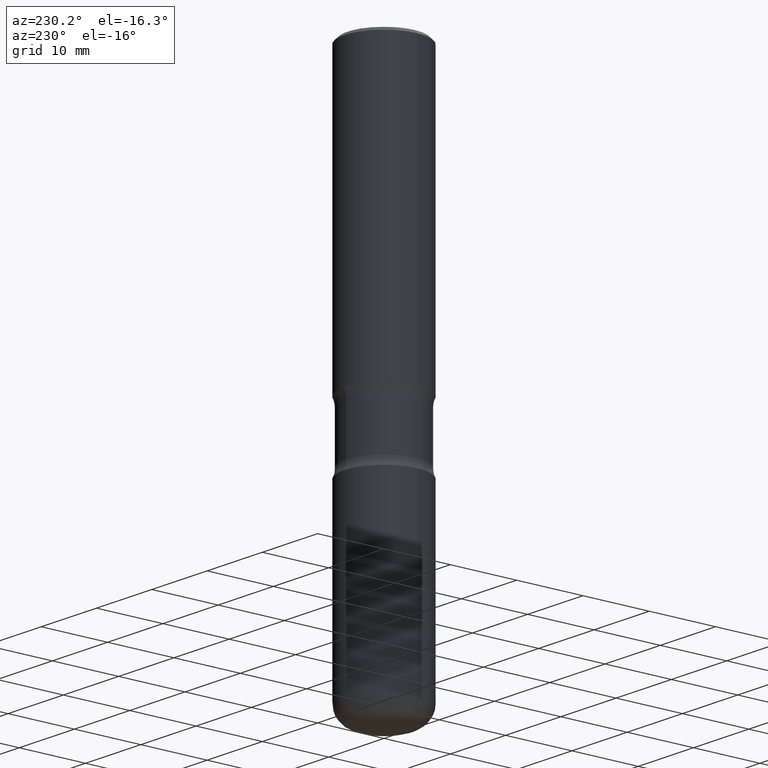
[diagram: clean part render]
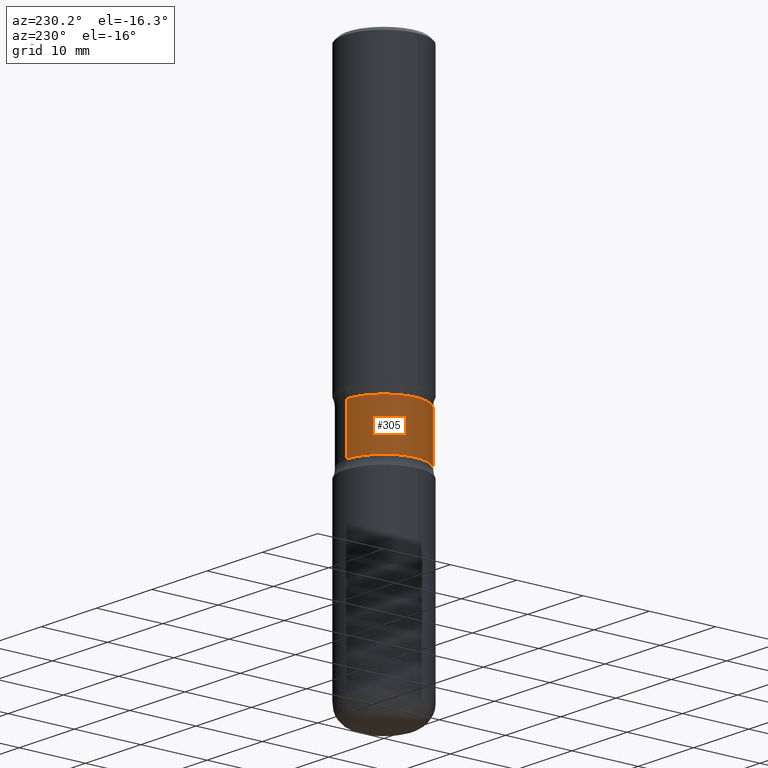
[diagram: same view with one face highlighted and labeled with its STEP entity id]
A machine part, auxiliary view. The second image highlights one B-rep face of the part: STEP entity #305.
In plain terms, the highlighted cylindrical surface (partial cylindrical patch) has radius 5.6896 mm, axis along (0, -0, -1).
Its self-contained STEP definition (entity closure, byte-faithful):
#58 = DIRECTION ( 'NONE',  ( 2.394995749868806294E-29, -3.563761628236091094E-15, -1.000000000000000000 ) ) ;
#93 = CARTESIAN_POINT ( 'NONE',  ( 7.931444691155953223E-29, -1.149448382073975340E-14, -3.267699999999999605 ) ) ;
#98 = EDGE_LOOP ( 'NONE', ( #196, #261, #277, #219 ) ) ;
#107 = DIRECTION ( 'NONE',  ( 2.394995749868806294E-29, -3.563761628236091094E-15, -1.000000000000000000 ) ) ;
#111 = VERTEX_POINT ( 'NONE', #200 ) ;
#112 = CIRCLE ( 'NONE', #255, 0.2240000000000000324 ) ;
#128 = CIRCLE ( 'NONE', #349, 0.2240000000000000324 ) ;
#129 = VERTEX_POINT ( 'NONE', #252 ) ;
#171 = EDGE_CURVE ( 'NONE', #129, #111, #112, .T. ) ;
#196 = ORIENTED_EDGE ( 'NONE', *, *, #248, .F. ) ;
#200 = CARTESIAN_POINT ( 'NONE',  ( 1.564183639801773497E-15, 0.2239999999999929270, -2.032737582675857801 ) ) ;
#210 = CYLINDRICAL_SURFACE ( 'NONE', #424, 0.2240000000000000602 ) ;
#219 = ORIENTED_EDGE ( 'NONE', *, *, #171, .F. ) ;
#228 = VERTEX_POINT ( 'NONE', #385 ) ;
#248 = EDGE_CURVE ( 'NONE', #228, #129, #357, .T. ) ;
#252 = CARTESIAN_POINT ( 'NONE',  ( -1.578600589287179908E-15, -0.2240000000000071378, -2.032737582675856025 ) ) ;
#255 = AXIS2_PLACEMENT_3D ( 'NONE', #548, #384, #507 ) ;
#260 = CARTESIAN_POINT ( 'NONE',  ( 4.288805644831536135E-29, -6.074224824657373494E-15, -1.746762417324141614 ) ) ;
#261 = ORIENTED_EDGE ( 'NONE', *, *, #298, .T. ) ;
#277 = ORIENTED_EDGE ( 'NONE', *, *, #379, .T. ) ;
#298 = EDGE_CURVE ( 'NONE', #228, #393, #128, .T. ) ;
#304 = LINE ( 'NONE', #531, #495 ) ;
#305 = ADVANCED_FACE ( 'NONE', ( #310 ), #210, .T. ) ;
#307 = DIRECTION ( 'NONE',  ( 6.982962677686265922E-15, 1.000000000000000000, -2.439149994343091666E-15 ) ) ;
#310 = FACE_OUTER_BOUND ( 'NONE', #98, .T. ) ;
#314 = CARTESIAN_POINT ( 'NONE',  ( 1.564183639801766791E-15, 0.2239999999999939539, -1.746762417324142502 ) ) ;
#349 = AXIS2_PLACEMENT_3D ( 'NONE', #260, #444, #437 ) ;
#357 = LINE ( 'NONE', #398, #439 ) ;
#379 = EDGE_CURVE ( 'NONE', #393, #111, #304, .T. ) ;
#384 = DIRECTION ( 'NONE',  ( 2.394995749868806294E-29, -3.563761628236091094E-15, -1.000000000000000000 ) ) ;
#385 = CARTESIAN_POINT ( 'NONE',  ( -1.578600589287187205E-15, -0.2240000000000060554, -1.746762417324140948 ) ) ;
#393 = VERTEX_POINT ( 'NONE', #314 ) ;
#398 = CARTESIAN_POINT ( 'NONE',  ( -1.536751551500743867E-15, -0.2240000000000115510, -3.267699999999999161 ) ) ;
#424 = AXIS2_PLACEMENT_3D ( 'NONE', #93, #58, #307 ) ;
#433 = DIRECTION ( 'NONE',  ( 2.394995749868806294E-29, -3.563761628236091094E-15, -1.000000000000000000 ) ) ;
#437 = DIRECTION ( 'NONE',  ( 6.982962677686265922E-15, 1.000000000000000000, -3.658724991514637697E-15 ) ) ;
#439 = VECTOR ( 'NONE', #433, 39.37007874015748143 ) ;
#444 = DIRECTION ( 'NONE',  ( 2.394995749868806294E-29, -3.563761628236091094E-15, -1.000000000000000000 ) ) ;
#495 = VECTOR ( 'NONE', #107, 39.37007874015748143 ) ;
#507 = DIRECTION ( 'NONE',  ( 6.982962677686265922E-15, 1.000000000000000000, -3.658724991514637697E-15 ) ) ;
#531 = CARTESIAN_POINT ( 'NONE',  ( 1.564183639801803276E-15, 0.2239999999999885416, -3.267700000000000049 ) ) ;
#548 = CARTESIAN_POINT ( 'NONE',  ( 4.973714950416923137E-29, -7.093372145566288471E-15, -2.032737582675856913 ) ) ;